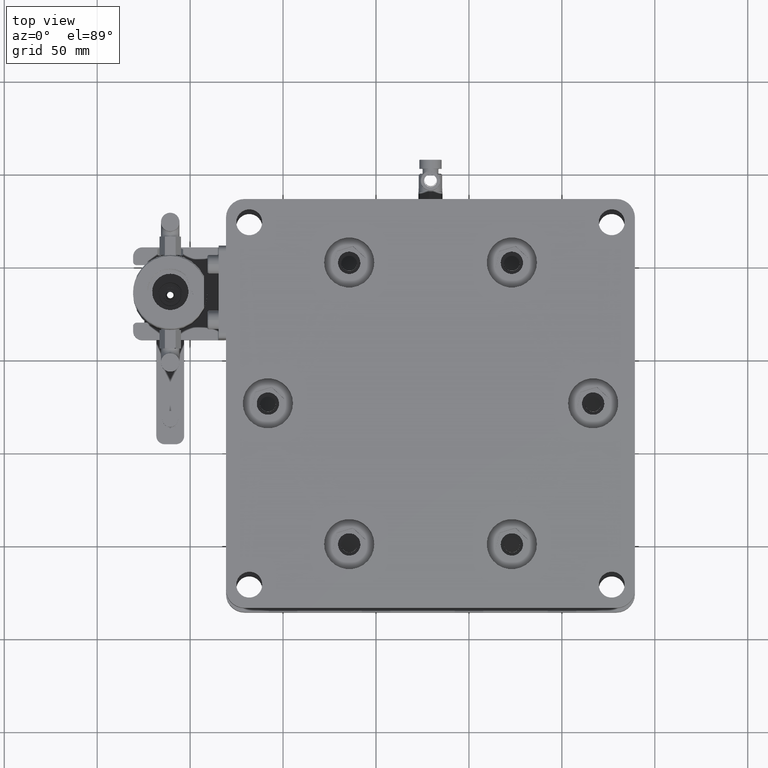
[diagram: clean part render]
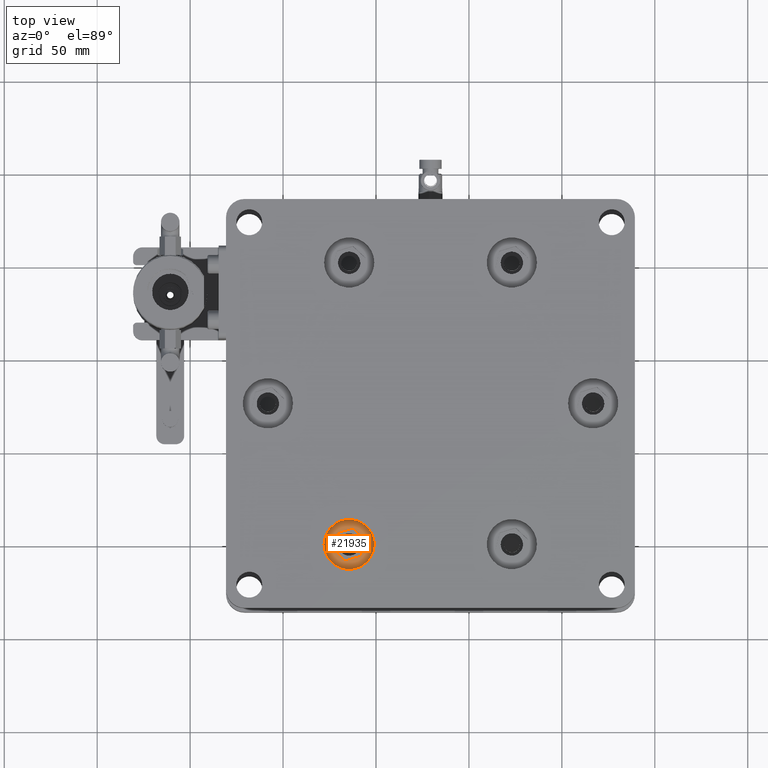
[diagram: same view with one face highlighted and labeled with its STEP entity id]
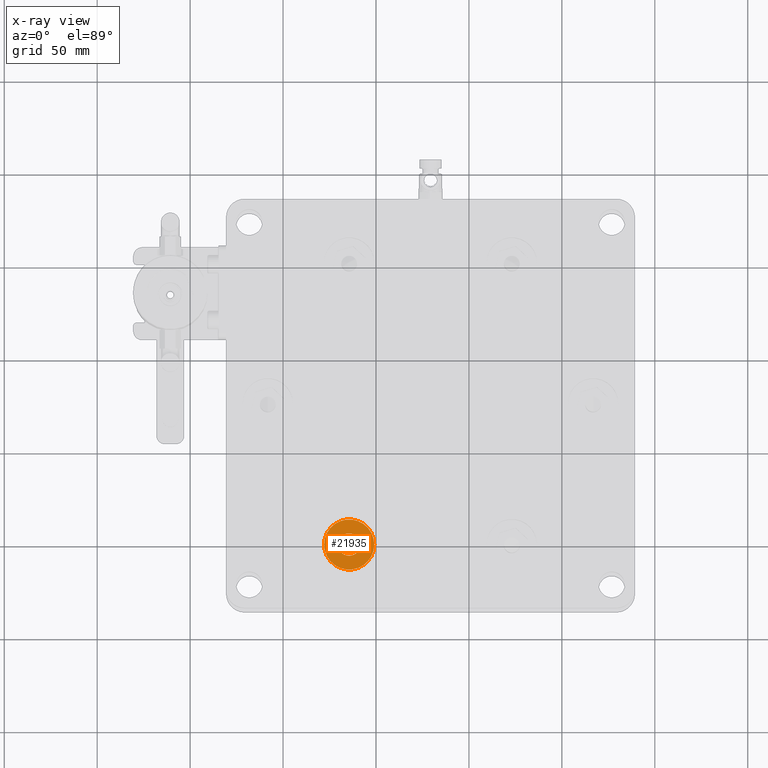
[diagram: x-ray of the same camera — body ghosted, the highlighted face saturated]
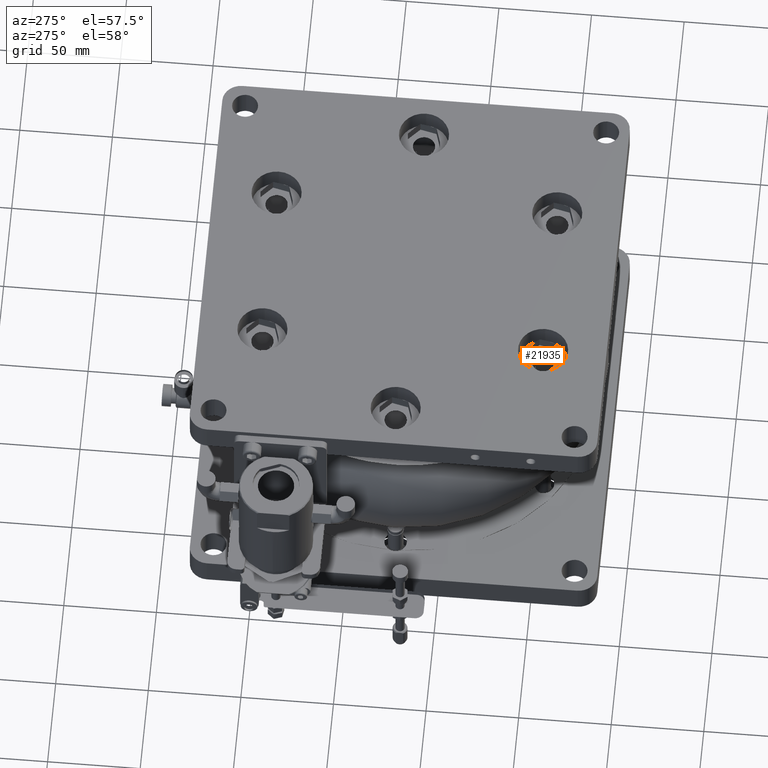
[diagram: same view with one face highlighted and labeled with its STEP entity id]
A machine part, top view. The second image highlights one B-rep face of the part: STEP entity #21935.
The next image is the same camera in x-ray: the body ghosted, the highlighted face saturated — about 0% of this face is hidden behind the body in this view.
A second angle (auxiliary view) of the same face is appended — the face is thin or edge-on in the first view.
In plain terms, the highlighted planar face has unit normal (0, 0, -1).
Its self-contained STEP definition (entity closure, byte-faithful):
#84 = CARTESIAN_POINT ( 'NONE',  ( 90.46543812567462339, -104.7777091562267913, 227.0000000000000284 ) ) ;
#217 = FACE_BOUND ( 'NONE', #3216, .T. ) ;
#235 = CARTESIAN_POINT ( 'NONE',  ( 91.55947851368665624, -101.6902543941542234, 227.0000000000000000 ) ) ;
#357 = DIRECTION ( 'NONE',  ( -1.000000000000000000, 0.000000000000000000, -0.000000000000000000 ) ) ;
#717 = CARTESIAN_POINT ( 'NONE',  ( 88.67318541366614681, -96.19024344196256493, 227.0000000000000568 ) ) ;
#861 = CARTESIAN_POINT ( 'NONE',  ( 85.10219935762630428, -95.33557983889197374, 227.0000000000000000 ) ) ;
#1009 = CARTESIAN_POINT ( 'NONE',  ( 84.55805708266642284, -95.40720504485848608, 227.0000000000000284 ) ) ;
#1161 = CARTESIAN_POINT ( 'NONE',  ( 90.63806046414570972, -98.12643272806664640, 227.0000000000000000 ) ) ;
#1298 = CARTESIAN_POINT ( 'NONE',  ( 80.76394097899935787, -104.9527618483707272, 227.0000000000000853 ) ) ;
#1308 = CARTESIAN_POINT ( 'NONE',  ( 87.58729012997527263, -95.67277951568222250, 227.0000000000000853 ) ) ;
#1606 = CARTESIAN_POINT ( 'NONE',  ( 79.81534958218180975, -99.57044182930357579, 226.9999999999999716 ) ) ;
#1731 = CARTESIAN_POINT ( 'NONE',  ( 79.55947851368664203, -101.3230872218269525, 227.0000000000000000 ) ) ;
#2026 = CARTESIAN_POINT ( 'NONE',  ( 84.41986552322896387, -107.2139142733401656, 227.0000000000000284 ) ) ;
#2174 = CARTESIAN_POINT ( 'NONE',  ( 82.23383208828795432, -106.3173426109976560, 226.9999999999999432 ) ) ;
#2314 = CARTESIAN_POINT ( 'NONE',  ( 86.84242720196793641, -107.1875603158516839, 227.0000000000000000 ) ) ;
#2460 = CARTESIAN_POINT ( 'NONE',  ( 87.72095524235932373, -106.9204554476173286, 226.9999999999999716 ) ) ;
#2604 = CARTESIAN_POINT ( 'NONE',  ( 90.99954821142748074, -103.8576587991626923, 227.0000000000000000 ) ) ;
#2934 = CARTESIAN_POINT ( 'NONE',  ( 91.48670035412762047, -100.3894219623942945, 227.0000000000000000 ) ) ;
#3084 = CARTESIAN_POINT ( 'NONE',  ( 89.01410044809502153, -96.41712760984523811, 227.0000000000000284 ) ) ;
#3216 = EDGE_LOOP ( 'NONE', ( #21020, #20569 ) ) ;
#3228 = CARTESIAN_POINT ( 'NONE',  ( 89.14039343355504741, -96.50683567142381492, 226.9999999999999716 ) ) ;
#3376 = CARTESIAN_POINT ( 'NONE',  ( 91.35729446984528579, -99.75716201034799724, 226.9999999999999432 ) ) ;
#3526 = CARTESIAN_POINT ( 'NONE',  ( 87.86208714773135853, -95.78227978410457411, 226.9999999999999432 ) ) ;
#3674 = CARTESIAN_POINT ( 'NONE',  ( 80.05828824984483560, -98.92733478210151077, 227.0000000000001137 ) ) ;
#3801 = CARTESIAN_POINT ( 'NONE',  ( 79.94547863416090649, -103.4409515490605855, 227.0000000000000000 ) ) ;
#3812 = CARTESIAN_POINT ( 'NONE',  ( 79.59286777685349534, -100.5919939446348224, 226.9999999999999716 ) ) ;
#4092 = CARTESIAN_POINT ( 'NONE',  ( 80.05530238497811979, -103.7200215939951704, 227.0000000000000568 ) ) ;
#4237 = CARTESIAN_POINT ( 'NONE',  ( 86.56089994470308113, -107.2389693987965416, 227.0000000000000568 ) ) ;
#4394 = CARTESIAN_POINT ( 'NONE',  ( 88.49722716893583652, -106.5557246480746727, 227.0000000000000000 ) ) ;
#4537 = CARTESIAN_POINT ( 'NONE',  ( 87.44892968666037802, -107.0193042066005518, 227.0000000000000000 ) ) ;
#4677 = CARTESIAN_POINT ( 'NONE',  ( 91.30360744520368144, -103.0757326143219217, 226.9999999999999432 ) ) ;
#4822 = CARTESIAN_POINT ( 'NONE',  ( 88.75613300743019352, -106.4016691723014389, 227.0000000000000284 ) ) ;
#5141 = CARTESIAN_POINT ( 'NONE',  ( 81.17050432650539449, -97.22675377136143027, 227.0000000000000284 ) ) ;
#5290 = CARTESIAN_POINT ( 'NONE',  ( 82.62172985848359019, -96.09044979555875443, 227.0000000000000000 ) ) ;
#5438 = CARTESIAN_POINT ( 'NONE',  ( 87.95523095345248521, -95.82189695801073981, 227.0000000000000284 ) ) ;
#5578 = CARTESIAN_POINT ( 'NONE',  ( 89.42615876584251566, -96.72694636209752161, 227.0000000000000000 ) ) ;
#5727 = CARTESIAN_POINT ( 'NONE',  ( 83.99355330220765836, -95.52527126566830873, 226.9999999999999716 ) ) ;
#6006 = CARTESIAN_POINT ( 'NONE',  ( 79.69500541966326068, -102.6060359101157360, 227.0000000000000284 ) ) ;
#6015 = CARTESIAN_POINT ( 'NONE',  ( 80.56522312452042911, -97.99744079642131567, 227.0000000000000000 ) ) ;
#6144 = CARTESIAN_POINT ( 'NONE',  ( 79.65522641362770173, -102.3909692395728399, 227.0000000000000284 ) ) ;
#6155 = DIRECTION ( 'NONE',  ( 1.000000000000000000, 0.000000000000000000, 0.000000000000000000 ) ) ;
#6441 = CARTESIAN_POINT ( 'NONE',  ( 83.16372607393761029, -106.8242774856535107, 227.0000000000000000 ) ) ;
#6587 = CARTESIAN_POINT ( 'NONE',  ( 90.69232229357974973, -104.4367941217612525, 227.0000000000000284 ) ) ;
#6737 = CARTESIAN_POINT ( 'NONE',  ( 82.44577161372704666, -106.4559310017035045, 226.9999999999999432 ) ) ;
#6881 = CARTESIAN_POINT ( 'NONE',  ( 91.12031384511453780, -103.5768446394858984, 227.0000000000000568 ) ) ;
#7505 = CARTESIAN_POINT ( 'NONE',  ( 84.62588032787378722, -95.39585297536355313, 227.0000000000000000 ) ) ;
#7662 = CARTESIAN_POINT ( 'NONE',  ( 88.88512493908031331, -96.32883183265315097, 226.9999999999999432 ) ) ;
#7788 = B_SPLINE_CURVE_WITH_KNOTS ( 'NONE', 3,
 ( #1731, #21984, #12525, #8520, #17122, #28651, #28792, #6144, #6006, #15041, #8372, #15335, #3801, #12818, #4092, #13102, #19903, #23769, #7930, #1298, #19322, #10303, #28349, #13544, #13398, #17989, #2174, #6737, #29087, #27166, #6441, #24640, #8955, #17698, #8811, #24932, #11312, #27013, #2026, #28941, #11167, #26719, #15783, #13683, #22422, #20201, #4237, #29229, #24789, #2314, #18141, #4537, #17844, #22707, #2460, #15475, #22560, #4394, #13835, #4822, #9248, #26863, #20346, #22858, #11026, #84, #24488, #25073, #6587, #15626, #2604, #18275, #9106, #6881, #15923, #4677, #27303, #11606, #13241, #11461, #22272, #20490, #235, #20052 ),
 .UNSPECIFIED., .F., .F.,
 ( 4, 1, 1, 1, 2, 2, 1, 1, 2, 2, 1, 2, 2, 2, 1, 1, 2, 2, 1, 1, 2, 2, 1, 1, 1, 2, 2, 2, 1, 1, 1, 2, 2, 1, 1, 2, 2, 1, 2, 2, 2, 1, 1, 2, 2, 1, 1, 2, 2, 1, 1, 1, 2, 2, 4 ),
 ( 0.000000000000000000, 0.03125000000001255940, 0.04687500000001754846, 0.05468750000002003953, 0.05859375000002031014, 0.06250000000002056688, 0.09375000000002693679, 0.1093750000000301148, 0.1171875000000317107, 0.1250000000000332789, 0.1562500000000404399, 0.1718750000000435485, 0.1875000000000466294, 0.2500000000000542899, 0.2812500000000573985, 0.2968750000000574540, 0.3046875000000572875, 0.3125000000000570655, 0.3437500000000528466, 0.3593750000000506817, 0.3671875000000501266, 0.3750000000000496270, 0.4062500000000503486, 0.4218750000000510147, 0.4296875000000514033, 0.4335937500000513478, 0.4375000000000512923, 0.5000000000000560663, 0.5312500000000585088, 0.5468750000000596190, 0.5546875000000601741, 0.5585937500000606182, 0.5625000000000610623, 0.5937500000000633937, 0.6093750000000649480, 0.6171875000000670575, 0.6250000000000691669, 0.6562500000000739409, 0.6718750000000752731, 0.6875000000000767164, 0.7500000000000786038, 0.7812500000000796030, 0.7968750000000816014, 0.8046875000000819345, 0.8125000000000822675, 0.8437500000000801581, 0.8593750000000782707, 0.8671875000000758282, 0.8750000000000733857, 0.9062500000000671685, 0.9218750000000636158, 0.9296875000000618394, 0.9335937500000599520, 0.9375000000000579536, 1.000000000000000000 ),
 .UNSPECIFIED. ) ;
#7807 = CARTESIAN_POINT ( 'NONE',  ( 91.42395160771451401, -100.0401385335575810, 226.9999999999999716 ) ) ;
#7930 = CARTESIAN_POINT ( 'NONE',  ( 80.48089656321853624, -104.5197417155795705, 227.0000000000000000 ) ) ;
#7938 = CARTESIAN_POINT ( 'NONE',  ( 91.25569549846437667, -99.43363604886889107, 227.0000000000001137 ) ) ;
#8093 = CARTESIAN_POINT ( 'NONE',  ( 80.96333765393480064, -97.45640696970278327, 226.9999999999999716 ) ) ;
#8242 = CARTESIAN_POINT ( 'NONE',  ( 79.72959632849830314, -99.89852379882221101, 227.0000000000000284 ) ) ;
#8372 = CARTESIAN_POINT ( 'NONE',  ( 79.86326152891486174, -103.2125383948105508, 227.0000000000000284 ) ) ;
#8520 = CARTESIAN_POINT ( 'NONE',  ( 79.60851899396296005, -102.0983238217055629, 227.0000000000000568 ) ) ;
#8811 = CARTESIAN_POINT ( 'NONE',  ( 83.80683312111845851, -107.0672161533259725, 227.0000000000000284 ) ) ;
#8955 = CARTESIAN_POINT ( 'NONE',  ( 83.30572109603814113, -106.8839225532574204, 227.0000000000000568 ) ) ;
#9106 = CARTESIAN_POINT ( 'NONE',  ( 91.10028595142254915, -103.6256958558504806, 227.0000000000001137 ) ) ;
#9248 = CARTESIAN_POINT ( 'NONE',  ( 89.18915314026666863, -106.1186247564886145, 227.0000000000000000 ) ) ;
#9727 = CARTESIAN_POINT ( 'NONE',  ( 84.51286276019213517, -95.41503419799106211, 227.0000000000000568 ) ) ;
#9873 = CARTESIAN_POINT ( 'NONE',  ( 91.55947851368667045, -101.1396814058942937, 227.0000000000000000 ) ) ;
#10024 = CARTESIAN_POINT ( 'NONE',  ( 90.35501604840996492, -97.69341259531390165, 227.0000000000000284 ) ) ;
#10166 = CARTESIAN_POINT ( 'NONE',  ( 91.06365464241562790, -98.92615284970193557, 226.9999999999999716 ) ) ;
#10303 = CARTESIAN_POINT ( 'NONE',  ( 81.46314506319767190, -105.7120614089927813, 227.0000000000000000 ) ) ;
#10313 = CARTESIAN_POINT ( 'NONE',  ( 90.93814479179853549, -98.65054198076913394, 226.9999999999999432 ) ) ;
#10460 = CARTESIAN_POINT ( 'NONE',  ( 80.11940881594371433, -98.78851564449462330, 227.0000000000001137 ) ) ;
#10611 = CARTESIAN_POINT ( 'NONE',  ( 79.90917080753226287, -99.29527560559039046, 227.0000000000000284 ) ) ;
#10745 = CARTESIAN_POINT ( 'NONE',  ( 79.99864318225704096, -99.06932980417209933, 227.0000000000000568 ) ) ;
#10887 = CARTESIAN_POINT ( 'NONE',  ( 79.69264591229617167, -100.0643284607115078, 227.0000000000000000 ) ) ;
#11026 = CARTESIAN_POINT ( 'NONE',  ( 90.37573006409954246, -104.9040021416821276, 226.9999999999999716 ) ) ;
#11167 = CARTESIAN_POINT ( 'NONE',  ( 84.82820985918348811, -107.2896654886706926, 227.0000000000000568 ) ) ;
#11312 = CARTESIAN_POINT ( 'NONE',  ( 84.30071975255155792, -107.1899198232148649, 227.0000000000000000 ) ) ;
#11461 = CARTESIAN_POINT ( 'NONE',  ( 91.45030556520232778, -102.4627002122744841, 226.9999999999999432 ) ) ;
#11606 = CARTESIAN_POINT ( 'NONE',  ( 91.42631111508246988, -102.5818459829300053, 227.0000000000000568 ) ) ;
#11932 = AXIS2_PLACEMENT_3D ( 'NONE', #28659, #26437, #6155 ) ;
#11943 = CARTESIAN_POINT ( 'NONE',  ( 86.74680020320279539, -95.44168863006284198, 227.0000000000000853 ) ) ;
#12088 = CARTESIAN_POINT ( 'NONE',  ( 86.81823727484190556, -95.45625462044385756, 226.9999999999999716 ) ) ;
#12231 = CARTESIAN_POINT ( 'NONE',  ( 85.92611493283087043, -95.32311962939557759, 226.9999999999999432 ) ) ;
#12384 = CARTESIAN_POINT ( 'NONE',  ( 91.51043803341032401, -100.5478506219546375, 227.0000000000000284 ) ) ;
#12525 = CARTESIAN_POINT ( 'NONE',  ( 79.57199948737424222, -101.7805196890266757, 227.0000000000000853 ) ) ;
#12533 = CARTESIAN_POINT ( 'NONE',  ( 88.41168541555015281, -96.03749581516538569, 227.0000000000000000 ) ) ;
#12678 = CARTESIAN_POINT ( 'NONE',  ( 79.66865146217264737, -100.1834742313755413, 227.0000000000000000 ) ) ;
#12720 = VERTEX_POINT ( 'NONE', #15750 ) ;
#12772 = EDGE_LOOP ( 'NONE', ( #14556 ) ) ;
#12818 = CARTESIAN_POINT ( 'NONE',  ( 79.96211028789555542, -103.4845639504989521, 227.0000000000000000 ) ) ;
#13102 = CARTESIAN_POINT ( 'NONE',  ( 80.18081223561041782, -103.9956324629603159, 226.9999999999999716 ) ) ;
#13241 = CARTESIAN_POINT ( 'NONE',  ( 91.44087710545844061, -102.5104089113116856, 227.0000000000000000 ) ) ;
#13398 = CARTESIAN_POINT ( 'NONE',  ( 82.10485657927378611, -106.2290468338064500, 226.9999999999999716 ) ) ;
#13544 = CARTESIAN_POINT ( 'NONE',  ( 81.97856359381127334, -106.1393387722266368, 227.0000000000000284 ) ) ;
#13683 = CARTESIAN_POINT ( 'NONE',  ( 86.01675766973271209, -107.3105946047661661, 227.0000000000000284 ) ) ;
#13835 = CARTESIAN_POINT ( 'NONE',  ( 88.67171667727370732, -106.4538123021406335, 227.0000000000000000 ) ) ;
#14163 = CARTESIAN_POINT ( 'NONE',  ( 90.69020359401571341, -98.21084905827515854, 227.0000000000000284 ) ) ;
#14321 = CARTESIAN_POINT ( 'NONE',  ( 81.92980388713256445, -96.52754968713399819, 227.0000000000000568 ) ) ;
#14359 = EDGE_CURVE ( 'NONE', #22423, #22423, #23279, .T. ) ;
#14467 = CARTESIAN_POINT ( 'NONE',  ( 86.69909150415074350, -95.43226017031534525, 227.0000000000001421 ) ) ;
#14556 = ORIENTED_EDGE ( 'NONE', *, *, #14359, .T. ) ;
#14614 = CARTESIAN_POINT ( 'NONE',  ( 87.81323593132859173, -95.76225189039489294, 226.9999999999999716 ) ) ;
#14762 = CARTESIAN_POINT ( 'NONE',  ( 91.46373061374504232, -100.2552052040786634, 227.0000000000000000 ) ) ;
#15041 = CARTESIAN_POINT ( 'NONE',  ( 79.76166255753594214, -102.8890124333399285, 227.0000000000000000 ) ) ;
#15052 = CARTESIAN_POINT ( 'NONE',  ( 80.27388710697201191, -98.47088032004708680, 227.0000000000000284 ) ) ;
#15199 = CARTESIAN_POINT ( 'NONE',  ( 80.59474132543925862, -97.95350997301493123, 226.9999999999999716 ) ) ;
#15335 = CARTESIAN_POINT ( 'NONE',  ( 79.91191086890458450, -103.3497752392355977, 227.0000000000000853 ) ) ;
#15475 = CARTESIAN_POINT ( 'NONE',  ( 87.95641288585197515, -106.8272633505383169, 227.0000000000000284 ) ) ;
#15626 = CARTESIAN_POINT ( 'NONE',  ( 90.84506992039848683, -104.1752941236113514, 227.0000000000000000 ) ) ;
#15750 = CARTESIAN_POINT ( 'NONE',  ( 91.55947851368664203, -101.3230872218269525, 227.0000000000000000 ) ) ;
#15783 = CARTESIAN_POINT ( 'NONE',  ( 85.74279672325059209, -107.3231034256136809, 226.9999999999999432 ) ) ;
#15923 = CARTESIAN_POINT ( 'NONE',  ( 91.20978621984799872, -103.3508988380473568, 227.0000000000000000 ) ) ;
#16542 = CARTESIAN_POINT ( 'NONE',  ( 84.49159649593832455, -95.41883512176859483, 227.0000000000000000 ) ) ;
#16694 = CARTESIAN_POINT ( 'NONE',  ( 87.31212390630093978, -95.57895829033894586, 227.0000000000000284 ) ) ;
#16841 = CARTESIAN_POINT ( 'NONE',  ( 83.44161418646211814, -95.70908734229909953, 227.0000000000000853 ) ) ;
#16980 = CARTESIAN_POINT ( 'NONE',  ( 91.17347839321456604, -99.20522289460241439, 227.0000000000000000 ) ) ;
#17122 = CARTESIAN_POINT ( 'NONE',  ( 79.63225667324564938, -102.2567524812632769, 226.9999999999999716 ) ) ;
#17280 = CARTESIAN_POINT ( 'NONE',  ( 79.55947851368664203, -100.9559200494591522, 227.0000000000000000 ) ) ;
#17651 = VERTEX_POINT ( 'NONE', #22986 ) ;
#17698 = CARTESIAN_POINT ( 'NONE',  ( 83.53166689742440099, -106.9733949279780347, 227.0000000000000000 ) ) ;
#17708 = CARTESIAN_POINT ( 'NONE',  ( 79.66381996108306396, -100.2087660925240726, 227.0000000000000568 ) ) ;
#17844 = CARTESIAN_POINT ( 'NONE',  ( 87.58616653108892081, -106.9706548666101895, 226.9999999999999432 ) ) ;
#17989 = CARTESIAN_POINT ( 'NONE',  ( 82.18990126486365000, -106.2878244100670742, 226.9999999999999716 ) ) ;
#18141 = CARTESIAN_POINT ( 'NONE',  ( 87.12540372518658671, -107.1209031779800398, 227.0000000000000284 ) ) ;
#18255 = CARTESIAN_POINT ( 'NONE',  ( 91.55947851368664203, -101.3230872218269525, 227.0000000000000000 ) ) ;
#18275 = CARTESIAN_POINT ( 'NONE',  ( 91.06066877752715527, -103.7188396615546395, 227.0000000000000284 ) ) ;
#18579 = AXIS2_PLACEMENT_3D ( 'NONE', #18255, #20473, #357 ) ;
#18748 = CARTESIAN_POINT ( 'NONE',  ( 89.65581196417031151, -96.93411303465849471, 226.9999999999999716 ) ) ;
#18897 = CARTESIAN_POINT ( 'NONE',  ( 91.47535322172332428, -100.3216254097498989, 227.0000000000000000 ) ) ;
#19050 = CARTESIAN_POINT ( 'NONE',  ( 83.67002734072862324, -95.62687023704920364, 227.0000000000000000 ) ) ;
#19190 = CARTESIAN_POINT ( 'NONE',  ( 86.98404193675959561, -95.49320503665123283, 227.0000000000000284 ) ) ;
#19322 = CARTESIAN_POINT ( 'NONE',  ( 81.02422335330672354, -105.2730609088531679, 227.0000000000000284 ) ) ;
#19332 = CARTESIAN_POINT ( 'NONE',  ( 84.27652982541734161, -95.45861412779908051, 227.0000000000000000 ) ) ;
#19763 = CARTESIAN_POINT ( 'NONE',  ( 80.01867107595009543, -99.02047858780470335, 227.0000000000001421 ) ) ;
#19903 = CARTESIAN_POINT ( 'NONE',  ( 80.32684108744274454, -104.2608358770800976, 226.9999999999999716 ) ) ;
#20052 = CARTESIAN_POINT ( 'NONE',  ( 91.55947851368664203, -101.3230872218269525, 227.0000000000000000 ) ) ;
#20201 = CARTESIAN_POINT ( 'NONE',  ( 86.49307669949324406, -107.2503214682921993, 226.9999999999999716 ) ) ;
#20205 = EDGE_CURVE ( 'NONE', #12720, #17651, #25976, .T. ) ;
#20346 = CARTESIAN_POINT ( 'NONE',  ( 89.94845270086257472, -105.4194206723005180, 227.0000000000000284 ) ) ;
#20473 = DIRECTION ( 'NONE',  ( 0.000000000000000000, 0.000000000000000000, -1.000000000000000000 ) ) ;
#20490 = CARTESIAN_POINT ( 'NONE',  ( 91.52608925051980293, -102.0541804989785390, 227.0000000000000284 ) ) ;
#20569 = ORIENTED_EDGE ( 'NONE', *, *, #20205, .F. ) ;
#20972 = CARTESIAN_POINT ( 'NONE',  ( 84.78435689716258139, -95.37210643463635051, 227.0000000000000284 ) ) ;
#21020 = ORIENTED_EDGE ( 'NONE', *, *, #26114, .F. ) ;
#21116 = CARTESIAN_POINT ( 'NONE',  ( 88.92905576250713295, -96.35835003358560868, 227.0000000000000000 ) ) ;
#21260 = CARTESIAN_POINT ( 'NONE',  ( 85.37616030411454915, -95.32307101804263993, 227.0000000000000568 ) ) ;
#21413 = CARTESIAN_POINT ( 'NONE',  ( 82.44724035012893637, -96.19236214150024011, 227.0000000000000853 ) ) ;
#21565 = CARTESIAN_POINT ( 'NONE',  ( 81.60950482669127837, -96.78783206140019502, 227.0000000000000000 ) ) ;
#21935 = ADVANCED_FACE ( 'NONE', ( #22685, #217 ), #22837, .F. ) ;
#21984 = CARTESIAN_POINT ( 'NONE',  ( 79.55947851368664203, -101.5064930377644572, 227.0000000000000284 ) ) ;
#21995 = CARTESIAN_POINT ( 'NONE',  ( 79.55947851368664203, -101.3230872218269525, 227.0000000000000000 ) ) ;
#22272 = CARTESIAN_POINT ( 'NONE',  ( 91.45513706629022010, -102.4374083511324187, 227.0000000000000284 ) ) ;
#22422 = CARTESIAN_POINT ( 'NONE',  ( 86.33460013020005874, -107.2740680090207235, 227.0000000000000568 ) ) ;
#22423 = VERTEX_POINT ( 'NONE', #24641 ) ;
#22560 = CARTESIAN_POINT ( 'NONE',  ( 88.23202375481494641, -106.7017534999080368, 226.9999999999999716 ) ) ;
#22685 = FACE_OUTER_BOUND ( 'NONE', #12772, .T. ) ;
#22707 = CARTESIAN_POINT ( 'NONE',  ( 87.67734284091676500, -106.9370871013533559, 227.0000000000000000 ) ) ;
#22837 = PLANE ( 'NONE',  #18579 ) ;
#22858 = CARTESIAN_POINT ( 'NONE',  ( 90.15561937342911847, -105.1897674739651620, 226.9999999999999716 ) ) ;
#22986 = CARTESIAN_POINT ( 'NONE',  ( 79.55947851368664203, -101.3230872218269525, 227.0000000000000000 ) ) ;
#23188 = CARTESIAN_POINT ( 'NONE',  ( 90.79211593995856333, -98.38533856663316612, 227.0000000000000284 ) ) ;
#23279 = CIRCLE ( 'NONE', #11932, 13.49999999999999822 ) ;
#23340 = CARTESIAN_POINT ( 'NONE',  ( 91.54695753999907026, -100.8656547546356137, 226.9999999999999432 ) ) ;
#23486 = CARTESIAN_POINT ( 'NONE',  ( 88.09405009108172635, -95.88301752412381518, 226.9999999999999432 ) ) ;
#23627 = CARTESIAN_POINT ( 'NONE',  ( 83.16254414155488917, -95.81891109310069510, 226.9999999999999716 ) ) ;
#23769 = CARTESIAN_POINT ( 'NONE',  ( 80.42875343337539107, -104.4353253854165047, 227.0000000000000568 ) ) ;
#23778 = CARTESIAN_POINT ( 'NONE',  ( 91.15684673947265537, -99.16161049314419529, 227.0000000000000000 ) ) ;
#24218 = CARTESIAN_POINT ( 'NONE',  ( 80.42663473379192851, -98.20938032189525302, 226.9999999999999432 ) ) ;
#24361 = CARTESIAN_POINT ( 'NONE',  ( 79.67807992191804090, -100.1357655323347302, 226.9999999999999716 ) ) ;
#24488 = CARTESIAN_POINT ( 'NONE',  ( 90.52421570193148170, -104.6926644706427254, 227.0000000000000853 ) ) ;
#24640 = CARTESIAN_POINT ( 'NONE',  ( 83.25686987965123365, -106.8638946595550721, 227.0000000000000000 ) ) ;
#24641 = CARTESIAN_POINT ( 'NONE',  ( 99.05947851368664203, -101.3230872218269525, 227.0000000000000000 ) ) ;
#24789 = CARTESIAN_POINT ( 'NONE',  ( 86.62736053143346737, -107.2273393218857507, 227.0000000000000568 ) ) ;
#24932 = CARTESIAN_POINT ( 'NONE',  ( 84.13491509064829188, -107.1529694070109713, 227.0000000000000000 ) ) ;
#24970 = CARTESIAN_POINT ( 'NONE',  ( 91.55947851368664203, -101.3230872218269525, 227.0000000000000000 ) ) ;
#25073 = CARTESIAN_POINT ( 'NONE',  ( 90.55373390285322444, -104.6487336472319356, 227.0000000000000000 ) ) ;
#25410 = CARTESIAN_POINT ( 'NONE',  ( 80.74322696326674986, -97.74217230198235029, 227.0000000000000568 ) ) ;
#25558 = CARTESIAN_POINT ( 'NONE',  ( 82.88693327261701427, -95.94442094371976282, 227.0000000000000000 ) ) ;
#25710 = CARTESIAN_POINT ( 'NONE',  ( 86.29074716817828516, -95.35650895497843749, 227.0000000000000568 ) ) ;
#25855 = CARTESIAN_POINT ( 'NONE',  ( 83.39800178500557593, -95.72571899604031387, 227.0000000000000568 ) ) ;
#25976 = B_SPLINE_CURVE_WITH_KNOTS ( 'NONE', 3,
 ( #24970, #9873, #23340, #12384, #2934, #18897, #28076, #14762, #7807, #3376, #7938, #28214, #16980, #23778, #10166, #10313, #23188, #14163, #1161, #10024, #27925, #18748, #5578, #3228, #3084, #21116, #7662, #717, #12533, #23486, #5438, #3526, #14614, #1308, #16694, #19190, #12088, #11943, #14467, #25997, #25710, #12231, #21260, #861, #20972, #7505, #1009, #9727, #16542, #19332, #5727, #19050, #27778, #16841, #25855, #23627, #25558, #5290, #21413, #28358, #14321, #21565, #5141, #8093, #25410, #26729, #15199, #6015, #24218, #15052, #10460, #3674, #19763, #10745, #10611, #1606, #8242, #10887, #24361, #12678, #17708, #3812, #17280, #21995 ),
 .UNSPECIFIED., .F., .F.,
 ( 4, 1, 1, 1, 2, 2, 1, 1, 2, 2, 1, 2, 2, 2, 1, 1, 2, 2, 1, 1, 2, 2, 1, 1, 1, 2, 2, 2, 1, 1, 1, 2, 2, 1, 1, 2, 2, 1, 2, 2, 2, 1, 1, 2, 2, 1, 1, 2, 2, 1, 1, 1, 2, 2, 4 ),
 ( 0.000000000000000000, 0.03125000000000725808, 0.04687500000001196265, 0.05468750000001431494, 0.05859375000001567496, 0.06250000000001704192, 0.09375000000001219858, 0.1093750000000094647, 0.1171875000000084655, 0.1250000000000074662, 0.1562500000000101863, 0.1718750000000125178, 0.1875000000000148492, 0.2500000000000294209, 0.2812500000000374700, 0.2968750000000406342, 0.3046875000000416334, 0.3125000000000425771, 0.3437500000000465739, 0.3593750000000485723, 0.3671875000000481282, 0.3750000000000477396, 0.4062500000000422995, 0.4218750000000392464, 0.4296875000000374700, 0.4335937500000365818, 0.4375000000000356937, 0.5000000000000154321, 0.5312500000000053291, 0.5468750000000002220, 0.5546874999999977796, 0.5585937499999968914, 0.5624999999999958922, 0.5937500000000022204, 0.6093750000000051070, 0.6171875000000057732, 0.6250000000000064393, 0.6562500000000071054, 0.6718750000000064393, 0.6875000000000056621, 0.7500000000000043299, 0.7812500000000043299, 0.7968750000000042188, 0.8046875000000038858, 0.8125000000000036637, 0.8437499999999976685, 0.8593749999999956701, 0.8671874999999955591, 0.8749999999999954481, 0.9062499999999900080, 0.9218749999999872324, 0.9296874999999857891, 0.9335937499999851230, 0.9374999999999844569, 1.000000000000000000 ),
 .UNSPECIFIED. ) ;
#25997 = CARTESIAN_POINT ( 'NONE',  ( 86.67378868190834851, -95.42742663984934381, 227.0000000000000568 ) ) ;
#26114 = EDGE_CURVE ( 'NONE', #17651, #12720, #7788, .T. ) ;
#26437 = DIRECTION ( 'NONE',  ( 0.000000000000000000, 0.000000000000000000, 1.000000000000000000 ) ) ;
#26719 = CARTESIAN_POINT ( 'NONE',  ( 85.19284209455872769, -107.3230548142535099, 227.0000000000000000 ) ) ;
#26729 = CARTESIAN_POINT ( 'NONE',  ( 80.65351890169417004, -97.86846528743383544, 227.0000000000000000 ) ) ;
#26863 = CARTESIAN_POINT ( 'NONE',  ( 89.50945220069274910, -105.8583423822376943, 227.0000000000000000 ) ) ;
#27013 = CARTESIAN_POINT ( 'NONE',  ( 84.37215682418263896, -107.2044858135940189, 227.0000000000000284 ) ) ;
#27166 = CARTESIAN_POINT ( 'NONE',  ( 83.02490693631767726, -106.7631569195460628, 226.9999999999999716 ) ) ;
#27303 = CARTESIAN_POINT ( 'NONE',  ( 91.38936069888413272, -102.7476506448103635, 226.9999999999999432 ) ) ;
#27778 = CARTESIAN_POINT ( 'NONE',  ( 83.53279049629448139, -95.67551957704107224, 227.0000000000000853 ) ) ;
#27925 = CARTESIAN_POINT ( 'NONE',  ( 90.09473367407723288, -97.37311353480605192, 227.0000000000000000 ) ) ;
#28076 = CARTESIAN_POINT ( 'NONE',  ( 91.46752761316857061, -100.2764502511669917, 226.9999999999999716 ) ) ;
#28214 = CARTESIAN_POINT ( 'NONE',  ( 91.20704615847259333, -99.29639920443476342, 227.0000000000000284 ) ) ;
#28349 = CARTESIAN_POINT ( 'NONE',  ( 81.69279826152148871, -105.9192280815517790, 227.0000000000000284 ) ) ;
#28358 = CARTESIAN_POINT ( 'NONE',  ( 82.36282401993658198, -96.24450527136029621, 226.9999999999999432 ) ) ;
#28651 = CARTESIAN_POINT ( 'NONE',  ( 79.64360380564998820, -102.3245490339062229, 227.0000000000000000 ) ) ;
#28659 = CARTESIAN_POINT ( 'NONE',  ( 85.55947851368664203, -101.3230872218269525, 227.0000000000000000 ) ) ;
#28792 = CARTESIAN_POINT ( 'NONE',  ( 79.65142941420469924, -102.3697241924881070, 227.0000000000000853 ) ) ;
#28941 = CARTESIAN_POINT ( 'NONE',  ( 84.44516834546567452, -107.2187478038049022, 227.0000000000000284 ) ) ;
#29087 = CARTESIAN_POINT ( 'NONE',  ( 82.70727161185796206, -106.6086786285098782, 227.0000000000000284 ) ) ;
#29229 = CARTESIAN_POINT ( 'NONE',  ( 86.60609426717915937, -107.2311402456634823, 227.0000000000000000 ) ) ;